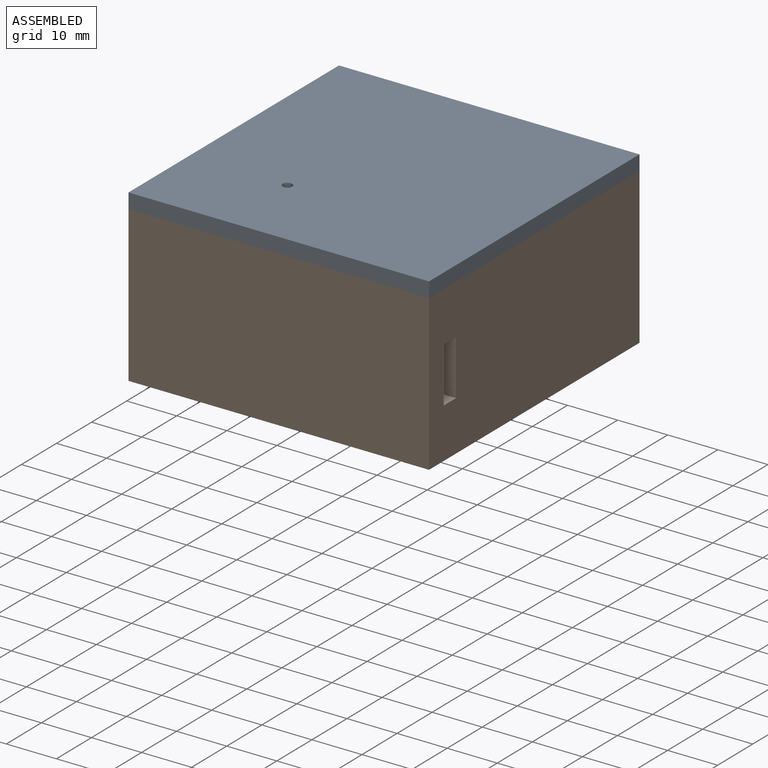
[diagram: assembled view]
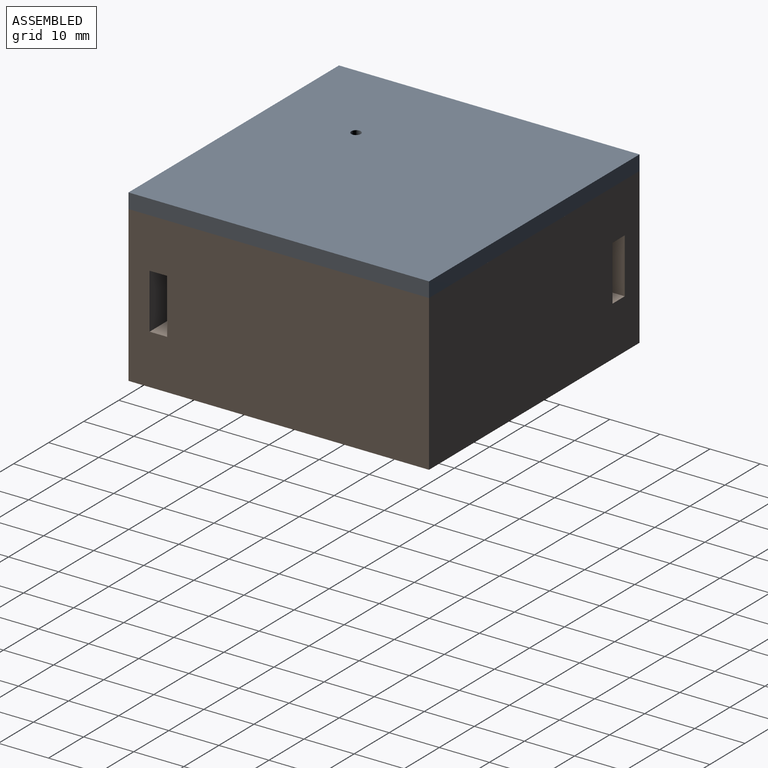
[diagram: assembled view, second angle]
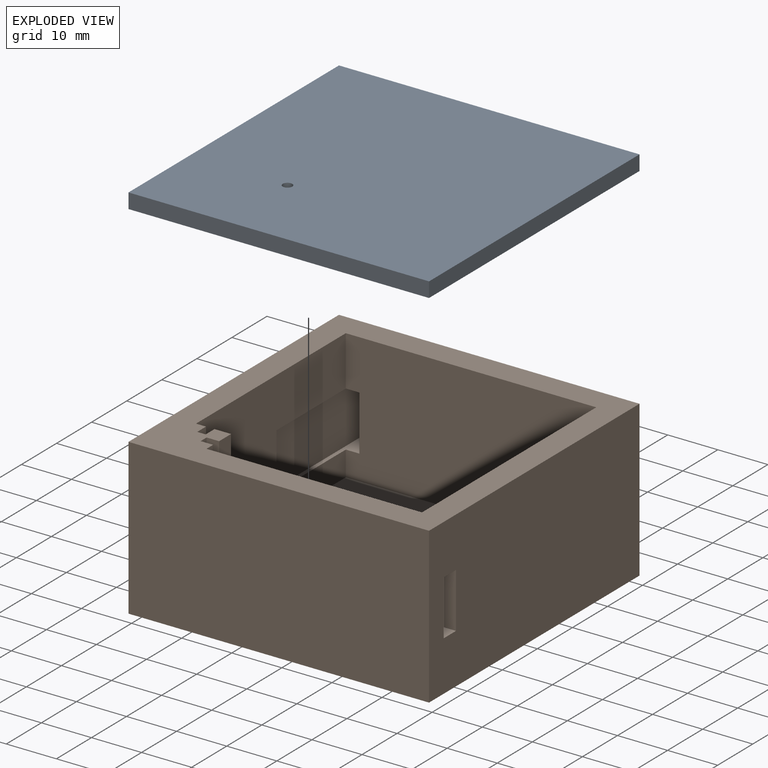
[diagram: exploded view]
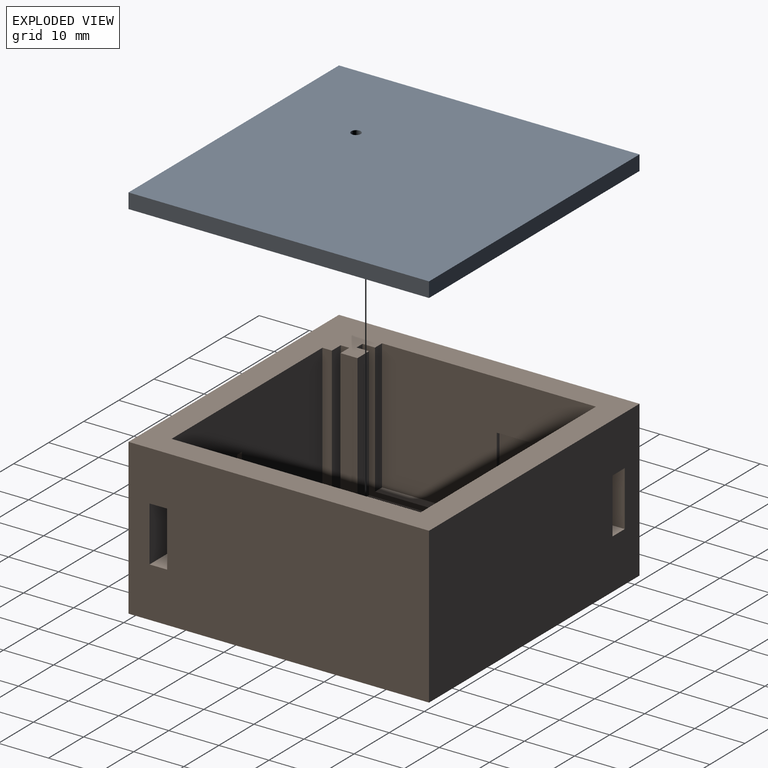
[diagram: exploded view, second angle]
ASSEMBLY  parts=2 mates=3
PART A: 14 faces, bbox 60x60x5 mm
  f0: plane 43x2mm, normal (-1,0,0), area 86mm2, adj f1,f9,f10,f11
  f1: plane 60x60mm, normal (0,0,1), area 1149mm2, adj f0,f2,f3,f4,f5,f7,f8,f9
  f2: plane 60x3mm, normal (1,0,0), area 180mm2, adj f1,f3,f5,f6
  f3: plane 60x3mm, normal (0,1,0), area 180mm2, adj f1,f2,f4,f6
  f4: plane 60x3mm, normal (-1,0,0), area 180mm2, adj f1,f3,f5,f6
  f5: plane 60x3mm, normal (0,-1,0), area 180mm2, adj f1,f2,f4,f6
  f6: plane 60x60mm, normal (0,0,-1), area 3597.2mm2, adj f2,f3,f4,f5,f13
  f7: plane 50x2mm, normal (1,0,0), area 100mm2, adj f1,f8,f9,f10
  f8: plane 43x2mm, normal (0,1,0), area 86mm2, adj f1,f7,f10,f12
  f9: plane 50x2mm, normal (0,-1,0), area 100mm2, adj f0,f1,f7,f10
  f10: plane 50x50mm, normal (0,0,1), area 2448.2mm2, adj f0,f7,f8,f9,f11,f12,f13
  f11: plane 7x2mm, normal (0,1,0), area 14mm2, adj f0,f1,f10,f12
  f12: plane 7x2mm, normal (-1,0,0), area 14mm2, adj f1,f8,f10,f11
  f13: cylinder r=0.95mm len=5mm, axis (0,0,1), area 29.8mm2, adj f6,f10
PART B: 36 faces, bbox 60x60x31 mm
  f0: plane 60x31mm, normal (0,1,0), area 1821.5mm2, adj f3,f18,f19,f20,f31,f32,f33,f35
  f1: plane 49.71x26mm, normal (0,-1,0), area 1263.9mm2, adj f2,f4,f12,f19,f31,f32,f33
  f2: plane 43x26mm, normal (-1,0,0), area 898.1mm2, adj f1,f4,f13,f19,f32,f33,f34
  f3: plane 60x31mm, normal (-1,0,0), area 1821.5mm2, adj f0,f5,f19,f20,f27,f28,f29,f30
  f4: plane 50x49.71mm, normal (0,0,1), area 2303mm2, adj f1,f2,f6,f7,f9,f10,f11,f12
  f5: plane 60x31mm, normal (0,-1,0), area 1860mm2, adj f3,f18,f19,f20
  f6: plane 26x3.3mm, normal (-1,0,0), area 85.8mm2, adj f4,f7,f17,f19
  f7: plane 41x28.5mm, normal (0,-1,0), area 167.5mm2, adj f4,f6,f8,f19,f23,f24
  f8: plane 28.5x1.7mm, normal (-1,0,0), area 48.5mm2, adj f7,f9,f19,f24
  f9: plane 41x28.5mm, normal (0,1,0), area 167.5mm2, adj f4,f8,f10,f19,f23,f24
  f10: plane 26x2mm, normal (-1,0,0), area 52mm2, adj f4,f9,f11,f19
  f11: plane 42.71x26mm, normal (0,1,0), area 892.6mm2, adj f4,f10,f12,f19,f26,f28,f29
  f12: plane 50x26mm, normal (1,0,0), area 1270.4mm2, adj f1,f4,f11,f19,f27,f28,f29
  f13: plane 26x1.9mm, normal (0,1,0), area 49.4mm2, adj f2,f4,f14,f19
  f14: plane 41x28.5mm, normal (-1,0,0), area 167.5mm2, adj f4,f13,f15,f19,f21,f22
  f15: plane 28.5x1.7mm, normal (0,1,0), area 48.5mm2, adj f14,f16,f19,f22
  f16: plane 41x28.5mm, normal (1,0,0), area 167.5mm2, adj f4,f15,f17,f19,f21,f22
  f17: plane 26x3.4mm, normal (0,1,0), area 88.4mm2, adj f4,f6,f16,f19
  f18: plane 60x31mm, normal (1,0,0), area 1860mm2, adj f0,f5,f19,f20
  f19: plane 60x60mm, normal (0,0,1), area 1154.7mm2, adj f0,f1,f2,f3,f5,f6,f7,f8
  f20: plane 60x60mm, normal (0,0,-1), area 3597.2mm2, adj f0,f3,f5,f18,f25
  f21: plane 2.5x1.7mm, normal (0,-1,0), area 4.3mm2, adj f4,f14,f16,f22
  f22: plane 41x1.7mm, normal (0,0,1), area 69.7mm2, adj f14,f15,f16,f21
  f23: plane 2.5x1.7mm, normal (1,0,0), area 4.3mm2, adj f4,f7,f9,f24
  f24: plane 41x1.7mm, normal (0,0,1), area 69.7mm2, adj f7,f8,f9,f23
  f25: cylinder r=0.95mm len=5mm, axis (0,0,1), area 29.8mm2, adj f4,f20
  f26: plane 11x0.8mm, normal (-1,0,0), area 8.8mm2, adj f11,f28,f29,f30
  f27: plane 11x5.19mm, normal (0,-1,0), area 57.1mm2, adj f3,f12,f28,f29
  f28: plane 25x3.5mm, normal (0,0,1), area 34mm2, adj f3,f11,f12,f26,f27,f30
  f29: plane 25x3.5mm, normal (0,0,-1), area 34mm2, adj f3,f11,f12,f26,f27,f30
  f30: plane 25x11mm, normal (0,1,0), area 275mm2, adj f3,f26,f28,f29
  f31: plane 11x5mm, normal (1,0,0), area 55mm2, adj f0,f1,f32,f33
  f32: plane 25x3.5mm, normal (0,0,1), area 35.5mm2, adj f0,f1,f2,f31,f34,f35
  f33: plane 25x3.5mm, normal (0,0,-1), area 35.5mm2, adj f0,f1,f2,f31,f34,f35
  f34: plane 11x0.9mm, normal (0,1,0), area 9.9mm2, adj f2,f32,f33,f35
  f35: plane 25x11mm, normal (-1,0,0), area 275mm2, adj f0,f32,f33,f34
PLACE A rot(axis=(1,0,0),180deg) t=(19.14,-9.64,44.32)mm
PLACE B rot(axis=(0,0,-1),90deg) t=(23.58,-8.55,15.32)mm
MATE planar A.f1 <-> B.f19  axis (0,0,-1) through (-10.86,-39.64,41.32)mm
MATE planar A.f4 <-> B.f5  axis (-1,0,0) through (-10.86,-9.64,42.82)mm
MATE planar A.f3 <-> B.f18  axis (0,-1,0) through (19.14,-39.64,42.82)mm
